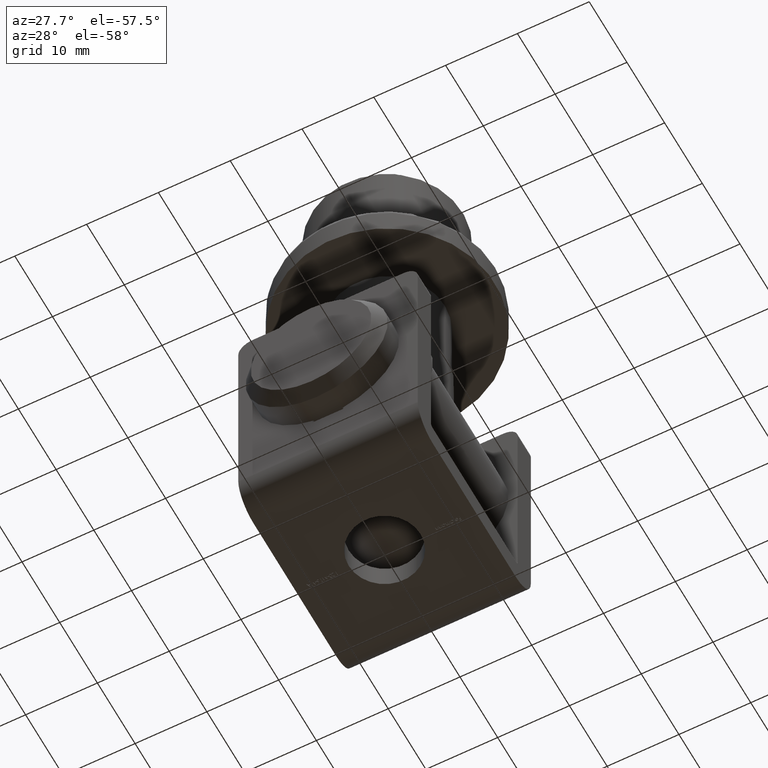
[diagram: clean part render]
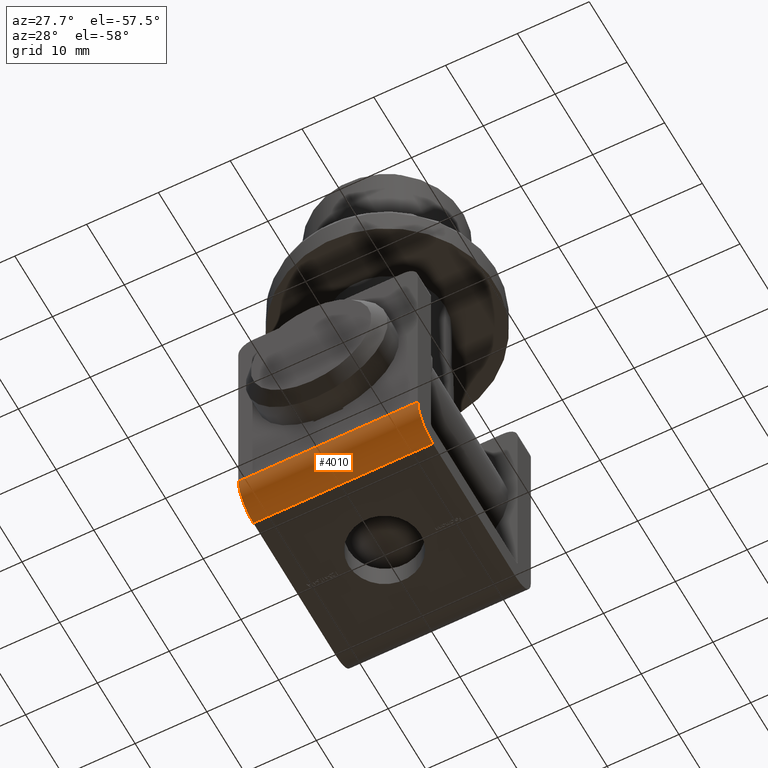
[diagram: same view with one face highlighted and labeled with its STEP entity id]
A machine part, auxiliary view. The second image highlights one B-rep face of the part: STEP entity #4010.
In plain terms, the highlighted cylindrical surface (edge-blend (fillet) strip) has radius 4 mm, axis along (-1, -0, 0).
Its self-contained STEP definition (entity closure, byte-faithful):
#454 = ORIENTED_EDGE ( 'NONE', *, *, #9573, .F. ) ;
#841 = CARTESIAN_POINT ( 'NONE',  ( 12.50000000000000000, 11.00000000000000000, 35.00000000000000000 ) ) ;
#898 = ORIENTED_EDGE ( 'NONE', *, *, #6114, .F. ) ;
#962 = DIRECTION ( 'NONE',  ( -1.000000000000000000, 0.000000000000000000, -0.000000000000000000 ) ) ;
#974 = CARTESIAN_POINT ( 'NONE',  ( 12.50000000000000000, 11.00000000000000000, 31.00000000000000355 ) ) ;
#1021 = VERTEX_POINT ( 'NONE', #13024 ) ;
#1642 = DIRECTION ( 'NONE',  ( 1.000000000000000000, -0.000000000000000000, -0.000000000000000000 ) ) ;
#2593 = VECTOR ( 'NONE', #5364, 1000.000000000000000 ) ;
#3006 = DIRECTION ( 'NONE',  ( 0.000000000000000000, 0.000000000000000000, 1.000000000000000000 ) ) ;
#3888 = CIRCLE ( 'NONE', #12937, 4.000000000000000000 ) ;
#4010 = ADVANCED_FACE ( 'NONE', ( #7394 ), #14039, .T. ) ;
#4262 = DIRECTION ( 'NONE',  ( 1.000000000000000000, -0.000000000000000000, 0.000000000000000000 ) ) ;
#4440 = ORIENTED_EDGE ( 'NONE', *, *, #5301, .F. ) ;
#5301 = EDGE_CURVE ( 'NONE', #11342, #9264, #5523, .T. ) ;
#5364 = DIRECTION ( 'NONE',  ( -1.000000000000000000, 0.000000000000000000, 0.000000000000000000 ) ) ;
#5523 = LINE ( 'NONE', #841, #2593 ) ;
#5789 = LINE ( 'NONE', #11285, #8133 ) ;
#6114 = EDGE_CURVE ( 'NONE', #13147, #1021, #5789, .T. ) ;
#6296 = DIRECTION ( 'NONE',  ( -1.000000000000000000, 0.000000000000000000, 0.000000000000000000 ) ) ;
#6374 = DIRECTION ( 'NONE',  ( 0.000000000000000000, 0.000000000000000000, 1.000000000000000000 ) ) ;
#7064 = CIRCLE ( 'NONE', #12124, 4.000000000000000000 ) ;
#7142 = EDGE_LOOP ( 'NONE', ( #454, #898, #12609, #4440 ) ) ;
#7284 = CARTESIAN_POINT ( 'NONE',  ( 12.50000000000000000, 11.00000000000000000, 31.00000000000000355 ) ) ;
#7384 = EDGE_CURVE ( 'NONE', #9264, #13147, #3888, .T. ) ;
#7394 = FACE_OUTER_BOUND ( 'NONE', #7142, .T. ) ;
#8133 = VECTOR ( 'NONE', #1642, 1000.000000000000000 ) ;
#8548 = CARTESIAN_POINT ( 'NONE',  ( -12.50000000000000000, 11.00000000000000000, 31.00000000000000355 ) ) ;
#9034 = CARTESIAN_POINT ( 'NONE',  ( 12.50000000000000000, 11.00000000000000000, 35.00000000000000000 ) ) ;
#9264 = VERTEX_POINT ( 'NONE', #11319 ) ;
#9573 = EDGE_CURVE ( 'NONE', #1021, #11342, #7064, .T. ) ;
#10258 = CARTESIAN_POINT ( 'NONE',  ( -12.50000000000000000, 15.00000000000000000, 31.00000000000000355 ) ) ;
#11285 = CARTESIAN_POINT ( 'NONE',  ( 12.50000000000000000, 15.00000000000000000, 31.00000000000000355 ) ) ;
#11319 = CARTESIAN_POINT ( 'NONE',  ( -12.50000000000000000, 11.00000000000000000, 35.00000000000000000 ) ) ;
#11342 = VERTEX_POINT ( 'NONE', #9034 ) ;
#11852 = DIRECTION ( 'NONE',  ( 0.000000000000000000, 0.000000000000000000, 1.000000000000000000 ) ) ;
#12124 = AXIS2_PLACEMENT_3D ( 'NONE', #974, #4262, #11852 ) ;
#12609 = ORIENTED_EDGE ( 'NONE', *, *, #7384, .F. ) ;
#12937 = AXIS2_PLACEMENT_3D ( 'NONE', #8548, #962, #6374 ) ;
#13024 = CARTESIAN_POINT ( 'NONE',  ( 12.50000000000000000, 15.00000000000000000, 31.00000000000000355 ) ) ;
#13147 = VERTEX_POINT ( 'NONE', #10258 ) ;
#13258 = AXIS2_PLACEMENT_3D ( 'NONE', #7284, #6296, #3006 ) ;
#14039 = CYLINDRICAL_SURFACE ( 'NONE', #13258, 4.000000000000000000 ) ;